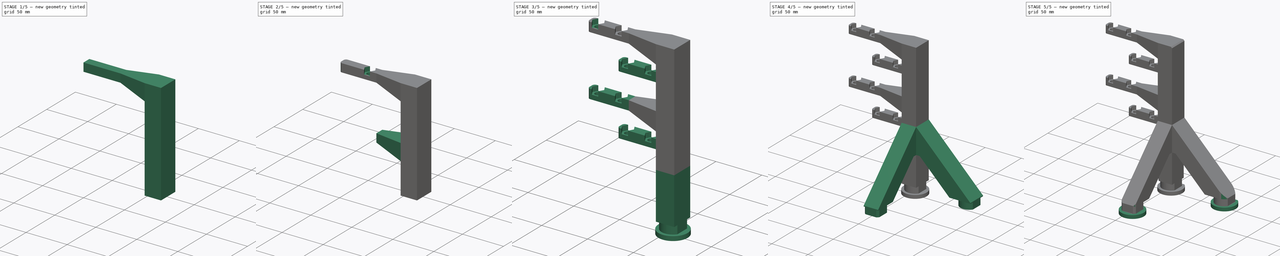
[diagram: build sequence overview — one tinted view per stage of 5, left to right]
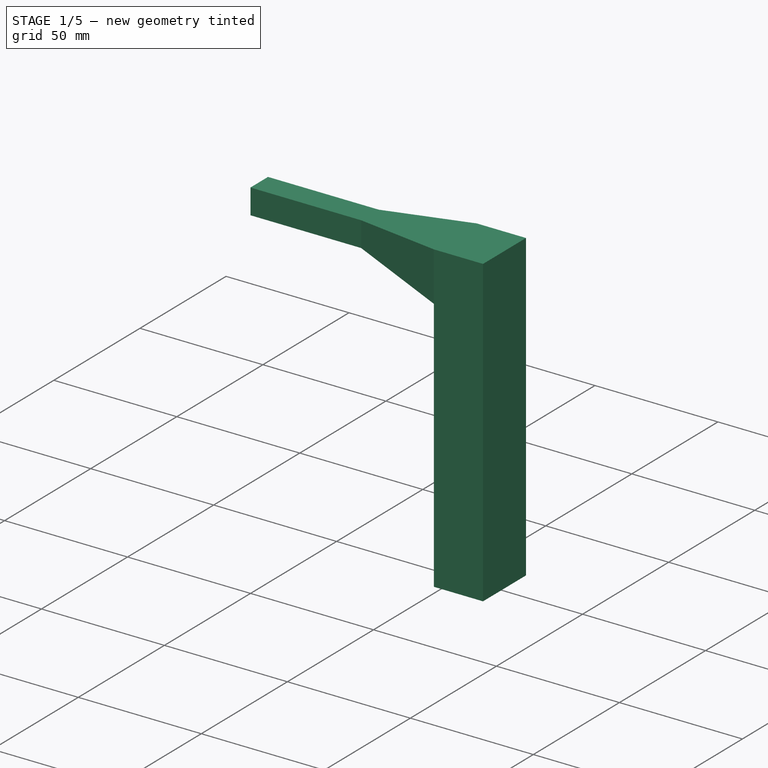
[diagram: stage 1 of 5 — iso view after this stage's code; geometry added in this stage tinted green]
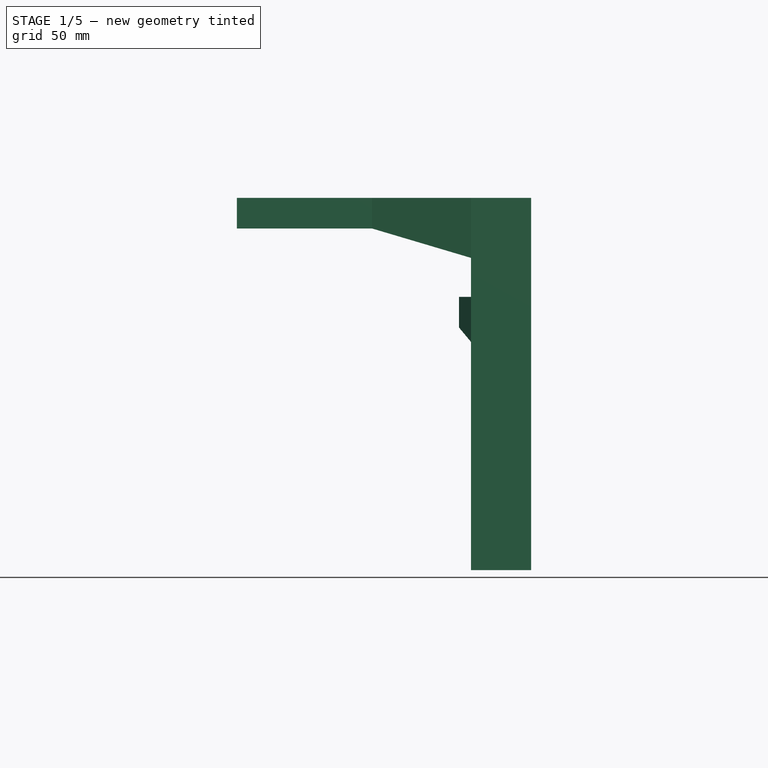
[diagram: stage 1 of 5 — front view after this stage's code; geometry added in this stage tinted green]
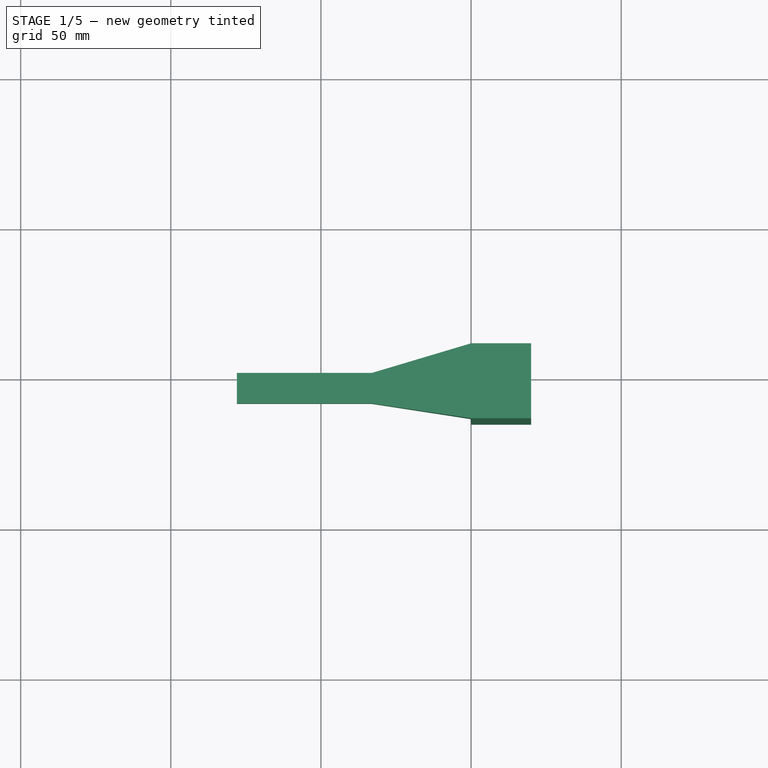
[diagram: stage 1 of 5 — top view after this stage's code; geometry added in this stage tinted green]
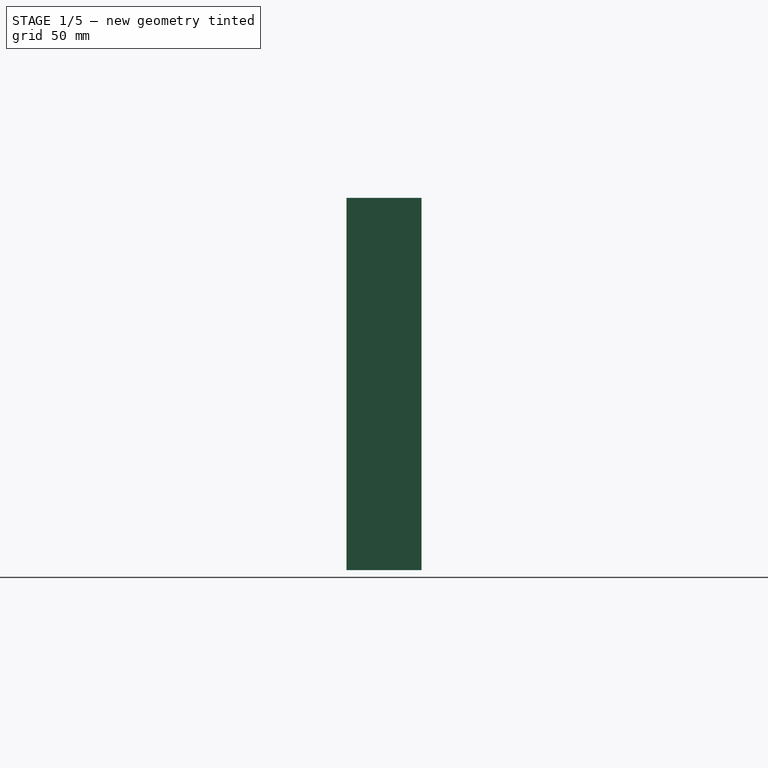
[diagram: stage 1 of 5 — right view after this stage's code; geometry added in this stage tinted green]
FCSTD DOCUMENT  (FreeCAD 0.19R)
Label: quad_clamp_right
License: All rights reserved
LicenseURL: http://en.wikipedia.org/wiki/All_rights_reserved
objects: Sketcher::SketchObject×16, PartDesign::Pad×8, PartDesign::LinearPattern×6, PartDesign::Pocket×5, PartDesign::Plane×2, PartDesign::AdditiveLoft×2, PartDesign::MultiTransform×2, PartDesign::Line×1, PartDesign::Hole×1, PartDesign::Fillet×1, PartDesign::Chamfer×1, PartDesign::Body×1
note: 64 computed .brp shape members not serialized (recipe doc carries the construction recipe); baked Part::Feature solids carry a one-line shape summary decoded from their .brp

FEATURE [Sketcher::SketchObject] Sketch001  label="rod_base_sk"
  FullyConstrained = true
  MapMode = 5
  Support = -> [XY_Plane]
  sketch-geometry (6):
    g0: LineSegment StartX=0 StartY=0 StartZ=0 EndX=-16.9706 EndY=-16.9706 EndZ=0
    g1: LineSegment StartX=-16.9706 StartY=-16.9706 StartZ=0 EndX=-28.9914 EndY=-4.94975 EndZ=0
    g2: LineSegment StartX=0 StartY=10 StartZ=0 EndX=20 EndY=10 EndZ=0
    g3: LineSegment StartX=20 StartY=10 StartZ=0 EndX=20 EndY=-14.9497 EndZ=0
    g4: LineSegment StartX=20 StartY=-14.9497 StartZ=0 EndX=0 EndY=-14.9497 EndZ=0
    g5: LineSegment StartX=0 StartY=-14.9497 StartZ=0 EndX=0 EndY=10 EndZ=0
  constraints (18):
    c: Coincident(g0,g-1)
    c: Coincident(g1,g0)
    c: Angle(g0,g-1) = 2.35619
    c: Perpendicular(g0,g1)
    c: Distance(g0) = 24
    c: Distance(g1) = 17
    c: Coincident(g2,g3)
    c: Coincident(g3,g4)
    c: Coincident(g4,g5)
    c: Coincident(g5,g2)
    c: Horizontal(g2)
    c: Horizontal(g4)
    c: Vertical(g3)
    c: Vertical(g5)
    c: PointOnObject(g2,g-2)
    c: DistanceY(g-1,g2) = 10
    c: DistanceY(g4,g1) = 10
    c: DistanceX(g2,g2) = 20
FEATURE [PartDesign::Pad] Pad  label="rod_base"
  Direction = (1,1,1)
  Length = 124
  Length2 = 100
  Profile = -> Sketch001
  Type = 0
FEATURE [Sketcher::SketchObject] Sketch  label="high_loft_bot_sk"
  ExternalGeometry = -> [Pad]
  FullyConstrained = true
  MapMode = 5
  Placement = pos=(0,0,0) rot=(0.57735,-0.57735,-0.57735;2.0944rad)
  Support = -> [Pad]
  sketch-geometry (4):
    g0: LineSegment StartX=14.9497 StartY=124 StartZ=0 EndX=-10 EndY=124 EndZ=0
    g1: LineSegment StartX=-10 StartY=124 StartZ=0 EndX=-10 EndY=104 EndZ=0
    g2: LineSegment StartX=-10 StartY=104 StartZ=0 EndX=14.9497 EndY=104 EndZ=0
    g3: LineSegment StartX=14.9497 StartY=104 StartZ=0 EndX=14.9497 EndY=124 EndZ=0
  constraints (11):
    c: Coincident(g0,g1)
    c: Coincident(g1,g2)
    c: Coincident(g2,g3)
    c: Coincident(g3,g0)
    c: Horizontal(g0)
    c: Horizontal(g2)
    c: Vertical(g1)
    c: Vertical(g3)
    c: Coincident(g0,g-3)
    c: PointOnObject(g1,g-4)
    c: DistanceY(g1,g1) = 20
FEATURE [PartDesign::Plane] DatumPlane  label="high_clamp_base_plane"
  AttachmentOffset = pos=(0,0,32.9914) rot=(0,0,1;0rad)
  Length = 151.06
  MapMode = 5
  Placement = pos=(-32.9914,0,0) rot=(0.57735,-0.57735,-0.57735;2.0944rad)
  ResizeMode = 0
  Support = -> [Pad]
  Width = 219.01
  expr: .AttachmentOffset.Base.z = (24 + 17) / sqrt(2) + 4
FEATURE [Sketcher::SketchObject] Sketch002  label="high_loft_top_sk"
  ExternalGeometry = -> [Pad]
  FullyConstrained = true
  MapMode = 5
  Placement = pos=(-32.9914,0,0) rot=(0.57735,-0.57735,-0.57735;2.0944rad)
  Support = -> [DatumPlane]
  sketch-geometry (4):
    g0: LineSegment StartX=-0.150253 StartY=124 StartZ=0 EndX=10.0497 EndY=124 EndZ=0
    g1: LineSegment StartX=10.0497 StartY=124 StartZ=0 EndX=10.0497 EndY=113.8 EndZ=0
    g2: LineSegment StartX=10.0497 StartY=113.8 StartZ=0 EndX=-0.150253 EndY=113.8 EndZ=0
    g3: LineSegment StartX=-0.150253 StartY=113.8 StartZ=0 EndX=-0.150253 EndY=124 EndZ=0
  constraints (12):
    c: Coincident(g0,g1)
    c: Coincident(g1,g2)
    c: Coincident(g2,g3)
    c: Coincident(g3,g0)
    c: Horizontal(g0)
    c: Horizontal(g2)
    c: Vertical(g1)
    c: Vertical(g3)
    c: PointOnObject(g0,g-3)
    c: DistanceX(g2,g2) = 10.2
    c: Equal(g2,g1)
    c: DistanceX(g0,g-3) = 4.9
FEATURE [Sketcher::SketchObject] Sketch003  label="low_loft_bot_sk"
  ExternalGeometry = -> [Pad]
  FullyConstrained = true
  MapMode = 5
  Placement = pos=(0,0,0) rot=(0.57735,-0.57735,-0.57735;2.0944rad)
  Support = -> [Pad]
  sketch-geometry (4):
    g0: LineSegment StartX=-10 StartY=91 StartZ=0 EndX=14.9497 EndY=91 EndZ=0
    g1: LineSegment StartX=14.9497 StartY=91 StartZ=0 EndX=14.9497 EndY=76 EndZ=0
    g2: LineSegment StartX=14.9497 StartY=76 StartZ=0 EndX=-10 EndY=76 EndZ=0
    g3: LineSegment StartX=-10 StartY=76 StartZ=0 EndX=-10 EndY=91 EndZ=0
  constraints (12):
    c: Coincident(g0,g1)
    c: Coincident(g1,g2)
    c: Coincident(g2,g3)
    c: Coincident(g3,g0)
    c: Horizontal(g0)
    c: Horizontal(g2)
    c: Vertical(g1)
    c: Vertical(g3)
    c: PointOnObject(g0,g-3)
    c: DistanceY(g0,g-3) = 33
    c: PointOnObject(g0,g-4)
    c: DistanceY(g3,g3) = 15
FEATURE [PartDesign::Plane] DatumPlane001  label="low_clamp_base_plane"
  AttachmentOffset = pos=(0,0,4) rot=(0,0,1;0rad)
  Length = 151.06
  MapMode = 5
  Placement = pos=(-4,0,0) rot=(0.57735,-0.57735,-0.57735;2.0944rad)
  ResizeMode = 0
  Support = -> [Pad]
  Width = 219.01
FEATURE [Sketcher::SketchObject] Sketch004  label="low_loft_top_sk"
  ExternalGeometry = -> [Pad]
  FullyConstrained = true
  MapMode = 5
  Placement = pos=(-4,0,0) rot=(0.57735,-0.57735,-0.57735;2.0944rad)
  Support = -> [DatumPlane001]
  sketch-geometry (4):
    g0: LineSegment StartX=-5.1 StartY=91 StartZ=0 EndX=5.1 EndY=91 EndZ=0
    g1: LineSegment StartX=5.1 StartY=91 StartZ=0 EndX=5.1 EndY=80.8 EndZ=0
    g2: LineSegment StartX=5.1 StartY=80.8 StartZ=0 EndX=-5.1 EndY=80.8 EndZ=0
    g3: LineSegment StartX=-5.1 StartY=80.8 StartZ=0 EndX=-5.1 EndY=91 EndZ=0
  constraints (12):
    c: Coincident(g0,g1)
    c: Coincident(g1,g2)
    c: Coincident(g2,g3)
    c: Coincident(g3,g0)
    c: Horizontal(g0)
    c: Horizontal(g2)
    c: Vertical(g1)
    c: Vertical(g3)
    c: DistanceY(g0,g-3) = 33
    c: DistanceX(g-3,g0) = 4.9
    c: DistanceX(g2,g2) = 10.2
    c: Equal(g3,g2)
FEATURE [PartDesign::AdditiveLoft] AdditiveLoft  label="high_loft"
  BaseFeature = -> Pad
  Closed = false
  Profile = -> Sketch
  Ruled = false
  Sections = -> [Sketch002]
FEATURE [PartDesign::AdditiveLoft] AdditiveLoft001  label="low_loft"
  BaseFeature = -> AdditiveLoft
  Closed = false
  Profile = -> Sketch003
  Ruled = false
  Sections = -> [Sketch004]
FEATURE [PartDesign::Line] DatumLine  label="clamp_vector"
  AttacherType = Attacher::AttachEngineLine
  Length = 20
  MapMode = 29
  Placement = pos=(41.9014,12.9368,38.7519) rot=(0.619156,0.733824,0.27955;2.67833rad)
  ResizeMode = 0
  Support = -> [AdditiveLoft001]
FEATURE [PartDesign::Pad] Pad001  label="clamp_base"
  BaseFeature = -> AdditiveLoft001
  Direction = (1,1,1)
  Length = 45
  Length2 = 100
  Profile = -> AdditiveLoft001 [Face14]
  Type = 0
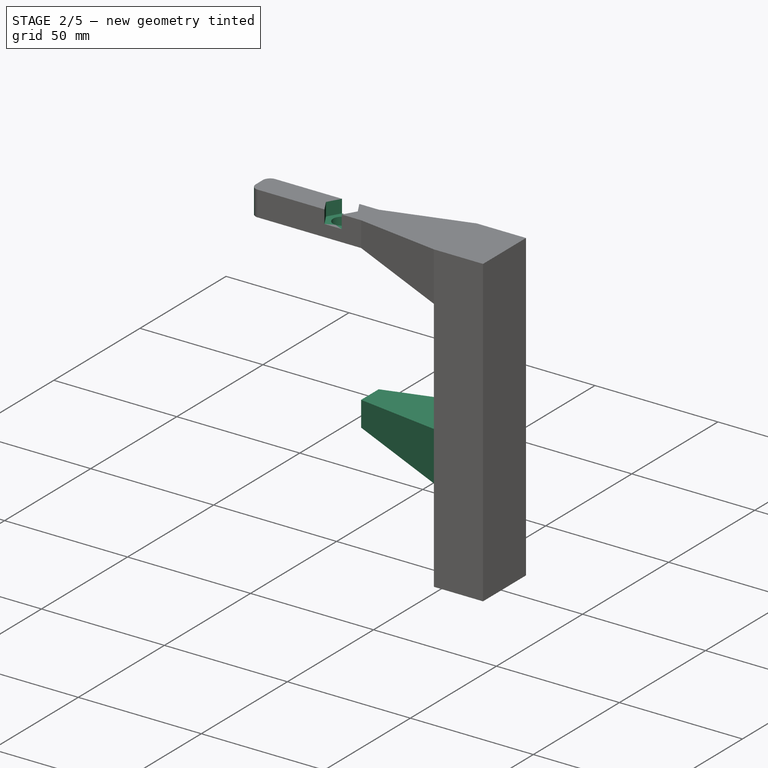
[diagram: stage 2 of 5 — iso view after this stage's code; geometry added in this stage tinted green]
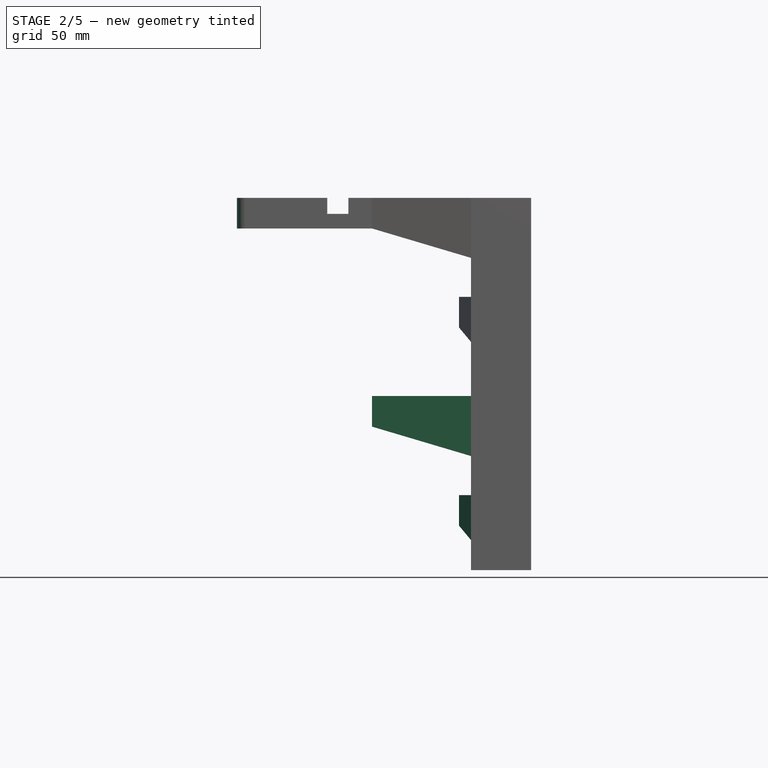
[diagram: stage 2 of 5 — front view after this stage's code; geometry added in this stage tinted green]
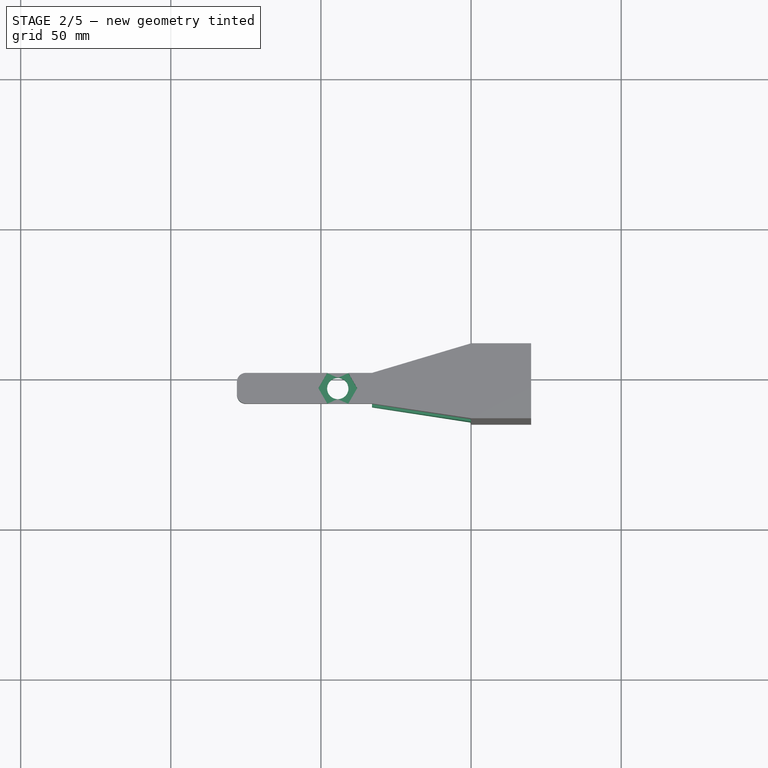
[diagram: stage 2 of 5 — top view after this stage's code; geometry added in this stage tinted green]
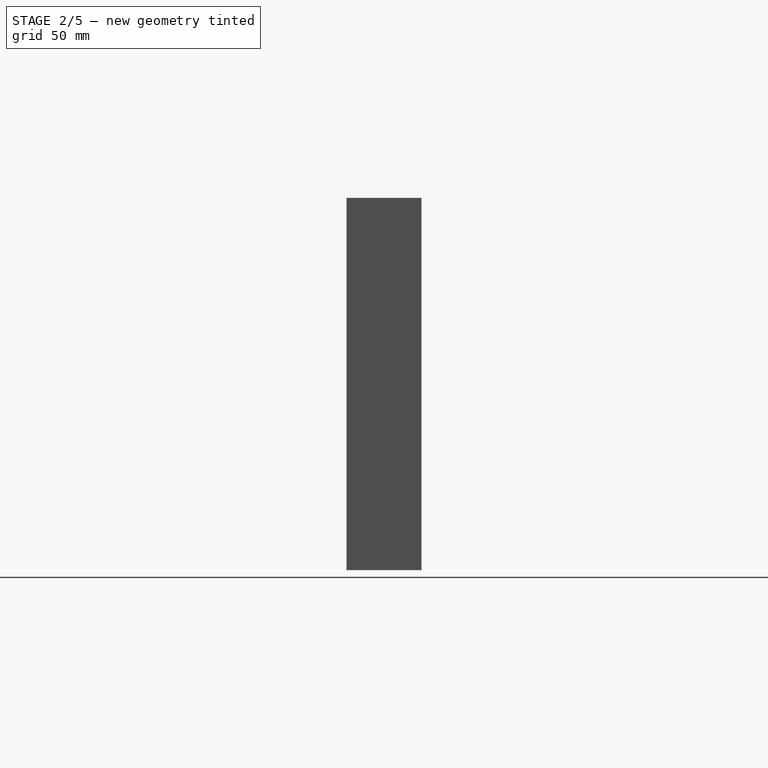
[diagram: stage 2 of 5 — right view after this stage's code; geometry added in this stage tinted green]
FEATURE [Sketcher::SketchObject] Sketch005  label="1on4_hole_sk"
  ExternalGeometry = -> [Pad001]
  FullyConstrained = true
  MapMode = 5
  Placement = pos=(0,0,124) rot=(0,0,1;0rad)
  Support = -> [Pad001]
  sketch-geometry (2):
    g0: Circle CenterX=-44.3914 CenterY=-4.94975 CenterZ=0 NormalX=0 NormalY=0 NormalZ=1 AngleXU=0 Radius=3.35
    g1: GeomPoint X=-32.9914 Y=-4.94975 Z=0
  constraints (4):
    c: Symmetric(g-3,g-3,g1)
    c: Horizontal(g0,g1)
    c: DistanceX(g0,g1) = 11.4
    c: Diameter(g0) = 6.7
FEATURE [PartDesign::Hole] Hole  label="1on4_hole"
  BaseFeature = -> Pad001
  Depth = 15
  DepthType = 0
  Diameter = 7.1
  DrillForDepth = false
  DrillPoint = 1
  DrillPointAngle = 118
  HoleCutCountersinkAngle = 90
  HoleCutCustomValues = false
  HoleCutDepth = 0
  HoleCutDiameter = 6.1
  HoleCutType = 0
  ModelActualThread = false
  Profile = -> Sketch005
  Tapered = false
  TaperedAngle = 90
  ThreadAngle = 0
  ThreadClass = 0
  ThreadCutOffInner = 0
  ThreadCutOffOuter = 0
  ThreadDirection = 0
  ThreadFit = 0
  ThreadPitch = 0
  ThreadSize = 9
  ThreadType = 3
  Threaded = false
FEATURE [Sketcher::SketchObject] Sketch006  label="1on4_hex_sk"
  ExternalGeometry = -> [Hole]
  FullyConstrained = true
  MapMode = 5
  Placement = pos=(0,0,124) rot=(0,0,1;0rad)
  Support = -> [Hole]
  sketch-geometry (7):
    g0: LineSegment StartX=-50.8577 StartY=-4.94975 StartZ=0 EndX=-47.6245 EndY=-10.5497 EndZ=0
    g1: LineSegment StartX=-47.6245 StartY=-10.5497 StartZ=0 EndX=-41.1582 EndY=-10.5497 EndZ=0
    g2: LineSegment StartX=-41.1582 StartY=-10.5497 StartZ=0 EndX=-37.9251 EndY=-4.94975 EndZ=0
    g3: LineSegment StartX=-37.9251 StartY=-4.94975 StartZ=0 EndX=-41.1582 EndY=0.650253 EndZ=0
    g4: LineSegment StartX=-41.1582 StartY=0.650253 StartZ=0 EndX=-47.6245 EndY=0.650253 EndZ=0
    g5: LineSegment StartX=-47.6245 StartY=0.650253 StartZ=0 EndX=-50.8577 EndY=-4.94975 EndZ=0
    g6: Circle CenterX=-44.3914 CenterY=-4.94975 CenterZ=0 NormalX=0 NormalY=0 NormalZ=1 AngleXU=0 Radius=6.46632
  constraints (16):
    c: Coincident(g0,g1)
    c: Coincident(g1,g2)
    c: Coincident(g2,g3)
    c: Coincident(g3,g4)
    c: Coincident(g4,g5)
    c: Coincident(g5,g0)
    c: Equal(g0, g1-g5) x5
    c: PointOnObject(g0,g6)
    c: PointOnObject(g1,g6)
    c: PointOnObject(g2,g6)
    c: PointOnObject(g3,g6)
    c: PointOnObject(g4,g6)
    c: PointOnObject(g5,g6)
    c: Coincident(g6,g-3)
    c: Horizontal(g0,g6)
    c: DistanceY(g0,g4) = 11.2
FEATURE [PartDesign::Pocket] Pocket  label="1on4_hex"
  BaseFeature = -> Hole
  Length = 5.35
  Length2 = 100
  Profile = -> Sketch006
  Type = 0
FEATURE [PartDesign::Fillet] Fillet  label="clamp_tip_fillet"
  Base = -> Pocket [Edge40,Edge63]
  BaseFeature = -> Pocket
  Radius = 3
  SupportTransform = false
FEATURE [PartDesign::LinearPattern] LinearPattern  label="quad_loft"
  BaseFeature = -> Fillet
  Direction = -> Z_Axis
  Length = 66
  Occurrences = 2
  Originals = -> [AdditiveLoft,AdditiveLoft001]
  Reversed = true
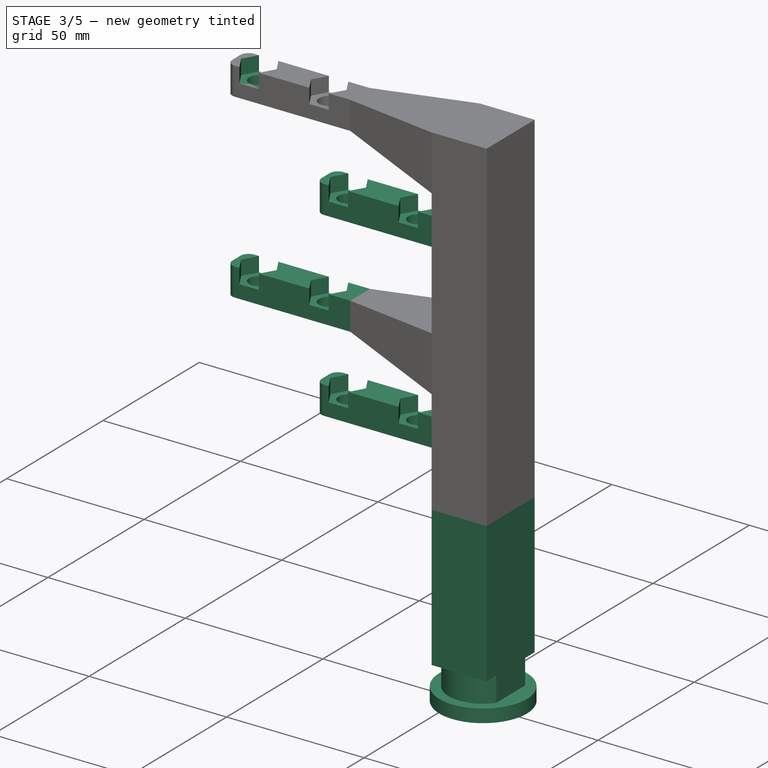
[diagram: stage 3 of 5 — iso view after this stage's code; geometry added in this stage tinted green]
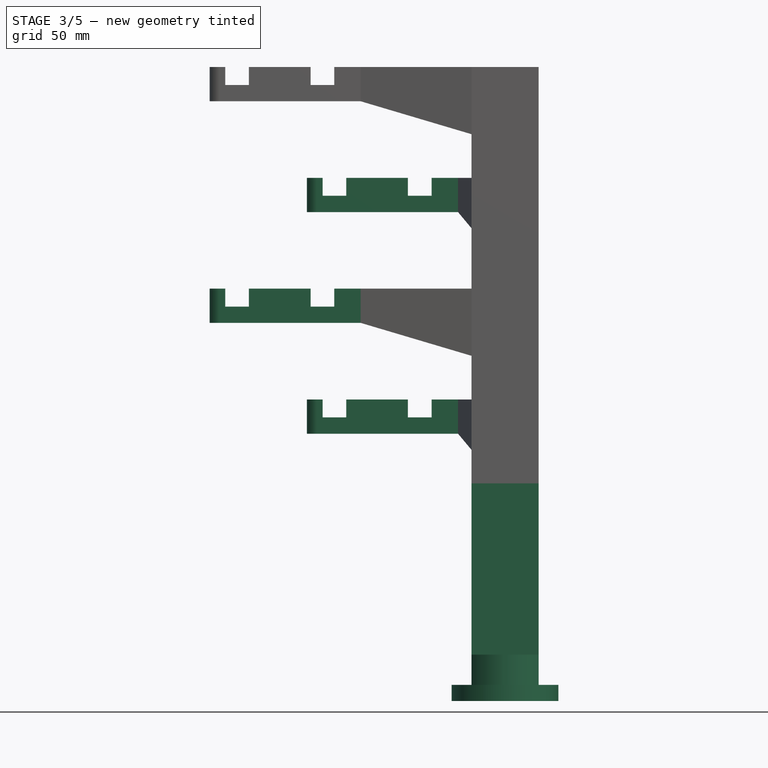
[diagram: stage 3 of 5 — front view after this stage's code; geometry added in this stage tinted green]
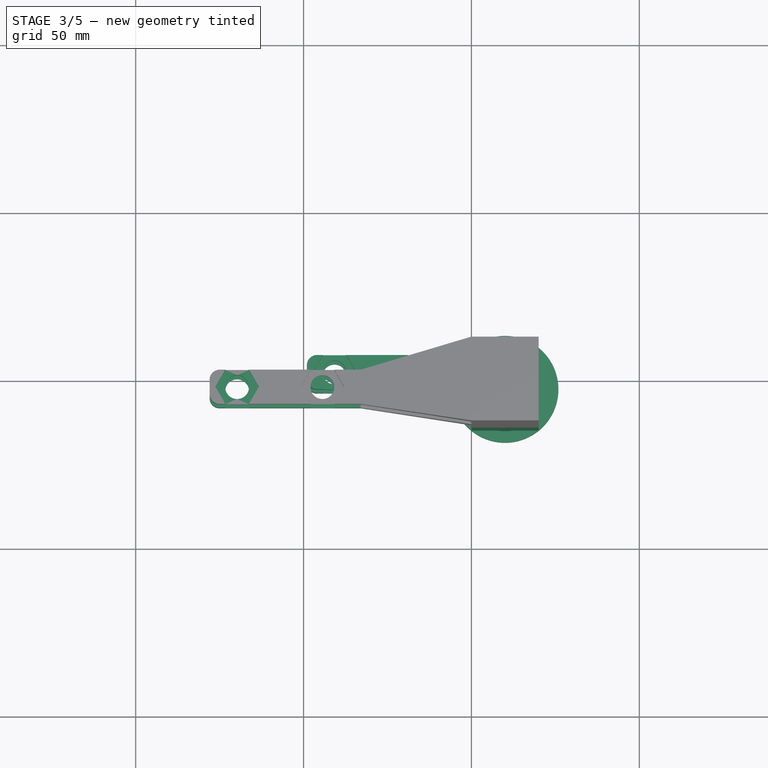
[diagram: stage 3 of 5 — top view after this stage's code; geometry added in this stage tinted green]
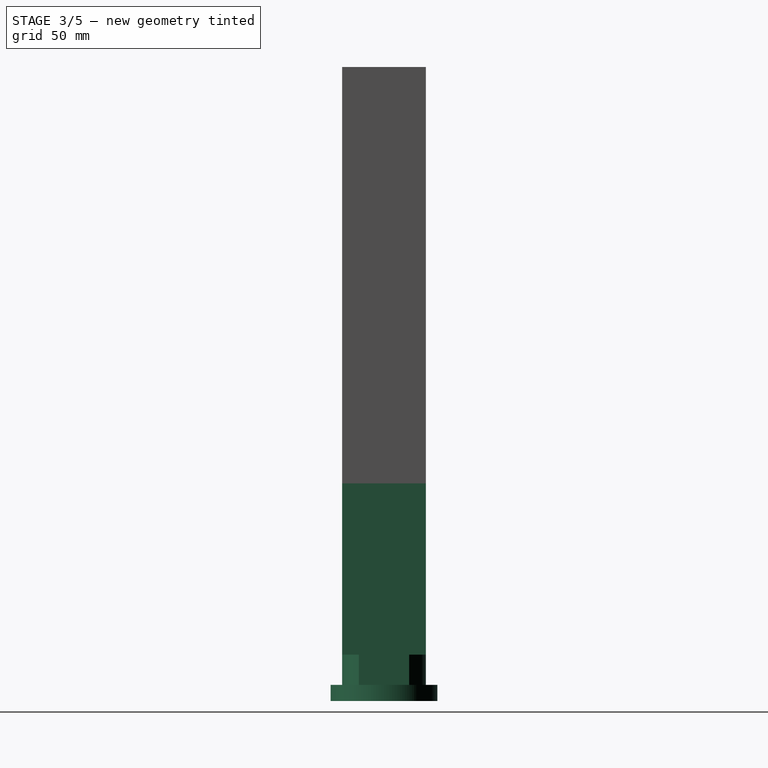
[diagram: stage 3 of 5 — right view after this stage's code; geometry added in this stage tinted green]
FEATURE [PartDesign::LinearPattern] LinearPattern001
  Direction = -> Z_Axis
  Length = 66
  Occurrences = 2
  Reversed = true
FEATURE [PartDesign::LinearPattern] LinearPattern002
  Direction = -> DatumLine
  Length = 44.2041
  Occurrences = 2
  expr: Length = sqrt(17 ^ 2 + 24 ^ 2 + 33 ^ 2)
FEATURE [PartDesign::MultiTransform] MultiTransform  label="quad_clamp_base"
  BaseFeature = -> LinearPattern
  Originals = -> [Pad001,Fillet]
  Transformations = -> [LinearPattern001,LinearPattern002]
FEATURE [PartDesign::LinearPattern] LinearPattern003
  Direction = -> X_Axis
  Length = 25.4
  Occurrences = 2
  Reversed = true
FEATURE [PartDesign::LinearPattern] LinearPattern004
  Direction = -> Z_Axis
  Length = 66
  Occurrences = 2
  Reversed = true
FEATURE [PartDesign::LinearPattern] LinearPattern005
  Direction = -> DatumLine
  Length = 44.2041
  Occurrences = 2
  expr: Length = sqrt(17 ^ 2 + 24 ^ 2 + 33 ^ 2)
FEATURE [PartDesign::MultiTransform] MultiTransform001  label="quad_dual_1on4_sys"
  BaseFeature = -> MultiTransform
  Originals = -> [Hole,Pocket]
  Transformations = -> [LinearPattern003,LinearPattern004,LinearPattern005]
FEATURE [PartDesign::Pad] Pad002  label="extender"
  BaseFeature = -> MultiTransform001
  Direction = (1,1,1)
  Length = 60
  Length2 = 100
  Profile = -> MultiTransform001 [Face35]
  Type = 0
FEATURE [Sketcher::SketchObject] Sketch007  label="clamp_clearance_sk"
  ExternalGeometry = -> [Pad002]
  FullyConstrained = true
  MapMode = 5
  Placement = pos=(0,0,-60) rot=(1,0,0;3.14159rad)
  Support = -> [Pad002]
  sketch-geometry (2):
    g0: Circle CenterX=10 CenterY=2.47487 CenterZ=0 NormalX=0 NormalY=0 NormalZ=1 AngleXU=0 Radius=20
    g1: Circle CenterX=10 CenterY=2.47487 CenterZ=0 NormalX=0 NormalY=0 NormalZ=1 AngleXU=0 Radius=12.5
  constraints (4):
    c: Symmetric(g-4,g-3,g0)
    c: Diameter(g0) = 40
    c: Coincident(g1,g0)
    c: Diameter(g1) = 25
FEATURE [PartDesign::Pocket] Pocket001  label="clamp_clearance"
  BaseFeature = -> Pad002
  Length = 9
  Length2 = 100
  Profile = -> Sketch007
  Type = 0
FEATURE [Sketcher::SketchObject] Sketch008  label="clamp_disk_sk"
  ExternalGeometry = -> [Pocket001]
  FullyConstrained = true
  MapMode = 5
  Placement = pos=(0,0,-60) rot=(1,0,0;3.14159rad)
  Support = -> [Pocket001]
  sketch-geometry (1):
    g0: Circle CenterX=10 CenterY=2.47487 CenterZ=0 NormalX=0 NormalY=0 NormalZ=1 AngleXU=0 Radius=15.9
  constraints (2):
    c: Coincident(g0,g-3)
    c: Diameter(g0) = 31.8
FEATURE [PartDesign::Pad] Pad003  label="clamp_disk"
  BaseFeature = -> Pocket001
  Direction = (1,1,1)
  Length = 4.8
  Length2 = 100
  Profile = -> Sketch008
  Type = 0
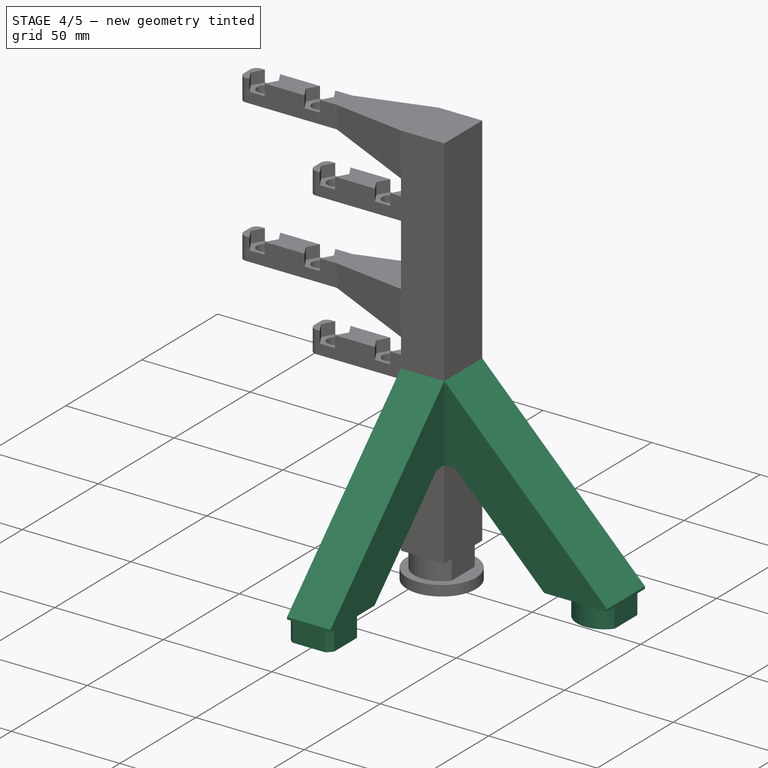
[diagram: stage 4 of 5 — iso view after this stage's code; geometry added in this stage tinted green]
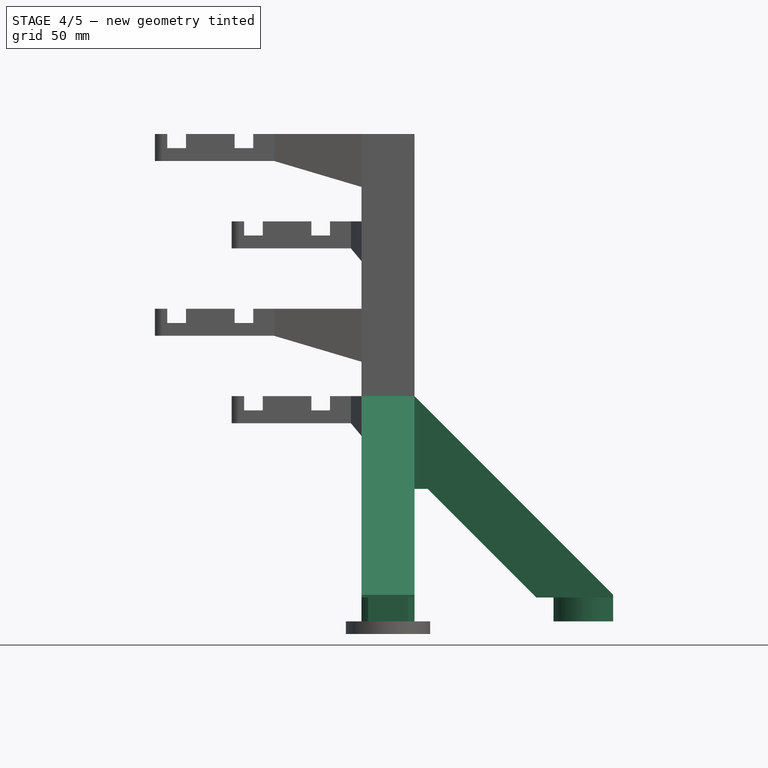
[diagram: stage 4 of 5 — front view after this stage's code; geometry added in this stage tinted green]
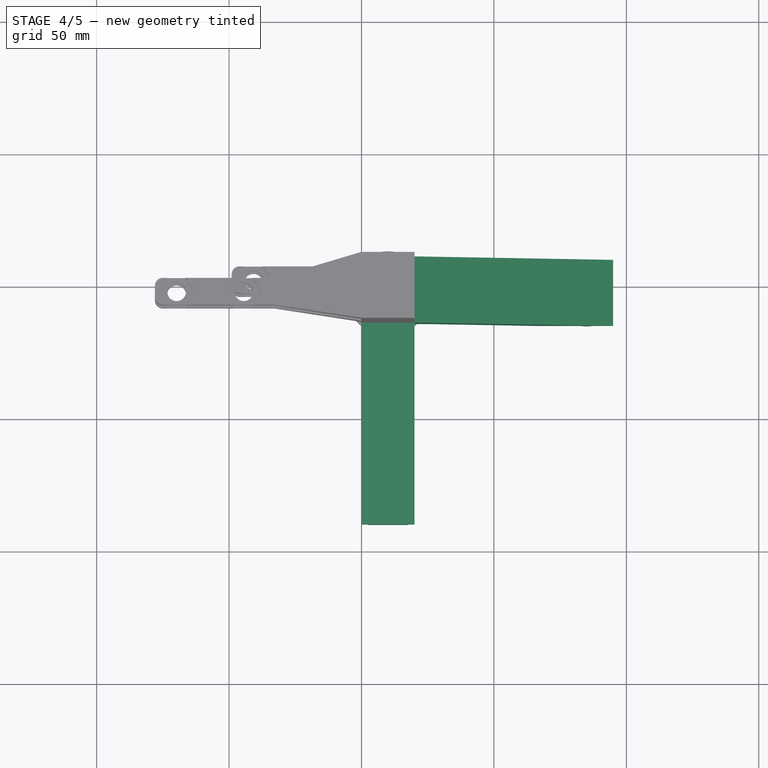
[diagram: stage 4 of 5 — top view after this stage's code; geometry added in this stage tinted green]
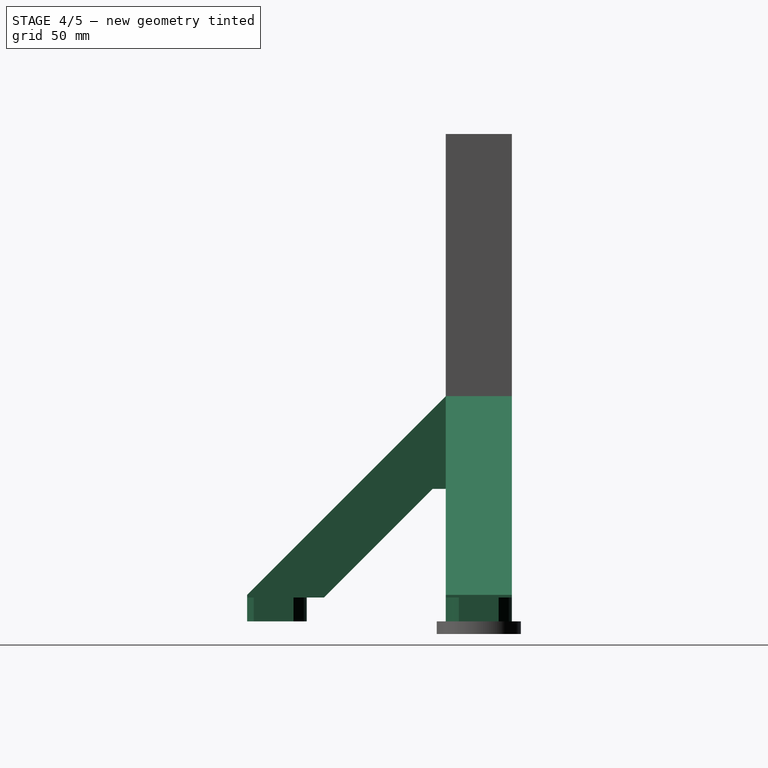
[diagram: stage 4 of 5 — right view after this stage's code; geometry added in this stage tinted green]
FEATURE [Sketcher::SketchObject] Sketch009  label="side_stiffener_1_sk"
  ExternalGeometry = -> [Pad003]
  FullyConstrained = true
  MapMode = 5
  Placement = pos=(0,-14.9497,0) rot=(1,0,0;1.5708rad)
  Support = -> [Pad003]
  sketch-geometry (6):
    g0: LineSegment StartX=20 StartY=25 StartZ=0 EndX=95 EndY=-50 EndZ=0
    g1: LineSegment StartX=95 StartY=-50 StartZ=0 EndX=95 EndY=-60 EndZ=0
    g2: LineSegment StartX=95 StartY=-60 StartZ=0 EndX=75 EndY=-60 EndZ=0
    g3: LineSegment StartX=75 StartY=-60 StartZ=0 EndX=25 EndY=-10 EndZ=0
    g4: LineSegment StartX=25 StartY=-10 StartZ=0 EndX=20 EndY=-10 EndZ=0
    g5: LineSegment StartX=20 StartY=-10 StartZ=0 EndX=20 EndY=25 EndZ=0
  constraints (18):
    c: PointOnObject(g0,g-3)
    c: Coincident(g0,g1)
    c: Vertical(g1)
    c: Coincident(g1,g2)
    c: Horizontal(g2)
    c: Coincident(g2,g3)
    c: Coincident(g3,g4)
    c: PointOnObject(g4,g-3)
    c: Horizontal(g4)
    c: Coincident(g4,g5)
    c: Coincident(g5,g0)
    c: Horizontal(g-4,g2)
    c: DistanceY(g-4,g3) = 50
    c: Angle(g2,g3) = 2.35619
    c: Parallel(g0,g3)
    c: DistanceX(g2,g2) = 20
    c: DistanceY(g1,g1) = 10
    c: DistanceX(g4,g4) = 5
FEATURE [PartDesign::Pad] Pad004  label="side_stiffener_1"
  BaseFeature = -> Pad003
  Direction = (1,1,1)
  Length = 5
  Length2 = 100
  Profile = -> Sketch009
  Reversed = true
  Type = 3
  UpToFace = -> Pad003 [Face4]
FEATURE [Sketcher::SketchObject] Sketch010  label="side_stiffener_2_sk"
  ExternalGeometry = -> [Pad003]
  FullyConstrained = true
  MapMode = 5
  Placement = pos=(20,0,0) rot=(0.57735,0.57735,0.57735;2.0944rad)
  Support = -> [Pad003]
  sketch-geometry (6):
    g0: LineSegment StartX=-14.9497 StartY=25 StartZ=0 EndX=-89.9497 EndY=-50 EndZ=0
    g1: LineSegment StartX=-89.9497 StartY=-50 StartZ=0 EndX=-89.9497 EndY=-60 EndZ=0
    g2: LineSegment StartX=-89.9497 StartY=-60 StartZ=0 EndX=-69.9497 EndY=-60 EndZ=0
    g3: LineSegment StartX=-69.9497 StartY=-60 StartZ=0 EndX=-19.9497 EndY=-10 EndZ=0
    g4: LineSegment StartX=-19.9497 StartY=-10 StartZ=0 EndX=-14.9497 EndY=-10 EndZ=0
    g5: LineSegment StartX=-14.9497 StartY=-10 StartZ=0 EndX=-14.9497 EndY=25 EndZ=0
  constraints (18):
    c: PointOnObject(g0,g-3)
    c: Coincident(g0,g1)
    c: Vertical(g1)
    c: Coincident(g1,g2)
    c: Horizontal(g2)
    c: Coincident(g2,g3)
    c: Coincident(g3,g4)
    c: Horizontal(g4)
    c: Coincident(g4,g5)
    c: Coincident(g5,g0)
    c: PointOnObject(g4,g-3)
    c: DistanceX(g4,g4) = 5
    c: DistanceY(g-4,g4) = 50
    c: Angle(g3,g2) = 2.35619
    c: Parallel(g0,g3)
    c: DistanceY(g1,g1) = 10
    c: DistanceX(g2,g2) = 20
    c: Horizontal(g2,g-4)
FEATURE [PartDesign::Pad] Pad005  label="side_stiffener_2"
  BaseFeature = -> Pad004
  Direction = (1,1,1)
  Length = 10
  Length2 = 100
  Profile = -> Sketch010
  Reversed = true
  Type = 3
  UpToFace = -> Pad004 [Face10]
FEATURE [Sketcher::SketchObject] Sketch011  label="foot_clamp_clearance"
  ExternalGeometry = -> [Pad005]
  FullyConstrained = true
  MapMode = 5
  Placement = pos=(0,-1.33e-14,-60) rot=(1,0,0;3.14159rad)
  Support = -> [Pad005]
  sketch-geometry (4):
    g0: Circle CenterX=85 CenterY=2.47487 CenterZ=0 NormalX=0 NormalY=0 NormalZ=1 AngleXU=0 Radius=25
    g1: Circle CenterX=10 CenterY=79.9497 CenterZ=0 NormalX=0 NormalY=0 NormalZ=1 AngleXU=0 Radius=25
    g2: Circle CenterX=10 CenterY=79.9497 CenterZ=0 NormalX=0 NormalY=0 NormalZ=1 AngleXU=0 Radius=12.5
    g3: Circle CenterX=85 CenterY=2.47487 CenterZ=0 NormalX=0 NormalY=0 NormalZ=1 AngleXU=0 Radius=12.5
  constraints (8):
    c: Symmetric(g-3,g-4,g1)
    c: Symmetric(g-6,g-5,g0)
    c: Diameter(g1) = 50
    c: Equal(g1,g0)
    c: Coincident(g2,g1)
    c: Diameter(g2) = 25
    c: Coincident(g3,g0)
    c: Equal(g3,g2)
FEATURE [PartDesign::Pocket] Pocket002  label="foot_clamp_clearance001"
  BaseFeature = -> Pad005
  Length = 0
  Length2 = 100
  Profile = -> Sketch011
  Type = 3
  UpToFace = -> Pad005 [Face17]
FEATURE [Sketcher::SketchObject] Sketch012  label="foot_filling_sk"
  ExternalGeometry = -> [Pocket002]
  FullyConstrained = true
  MapMode = 5
  Placement = pos=(0,0,-60) rot=(1,0,0;3.14159rad)
  Support = -> [Pocket002]
  sketch-geometry (4):
    g0: LineSegment StartX=2.5 StartY=69.9497 StartZ=0 EndX=17.5 EndY=69.9497 EndZ=0
    g1: LineSegment StartX=75 StartY=-5.02513 StartZ=0 EndX=75 EndY=9.97487 EndZ=0
    g2: ArcOfCircle CenterX=10 CenterY=79.9497 CenterZ=0 NormalX=0 NormalY=0 NormalZ=1 AngleXU=0 Radius=12.5 StartAngle=4.06889 EndAngle=5.35589
    g3: ArcOfCircle CenterX=85 CenterY=2.47487 CenterZ=0 NormalX=0 NormalY=0 NormalZ=1 AngleXU=0 Radius=12.5 StartAngle=2.49809 EndAngle=3.78509
  constraints (10):
    c: Coincident(g0,g-3)
    c: Coincident(g0,g-3)
    c: Coincident(g1,g-4)
    c: Coincident(g1,g-4)
    c: Coincident(g2,g-6)
    c: Coincident(g2,g0)
    c: Coincident(g2,g0)
    c: Coincident(g3,g-5)
    c: Coincident(g3,g1)
    c: Coincident(g3,g1)
FEATURE [PartDesign::Pad] Pad006  label="foot_filling"
  BaseFeature = -> Pocket002
  Direction = (1,1,1)
  Length = 10
  Length2 = 100
  Profile = -> Sketch012
  Reversed = true
  Type = 3
  UpToFace = -> Pocket002 [Face35]
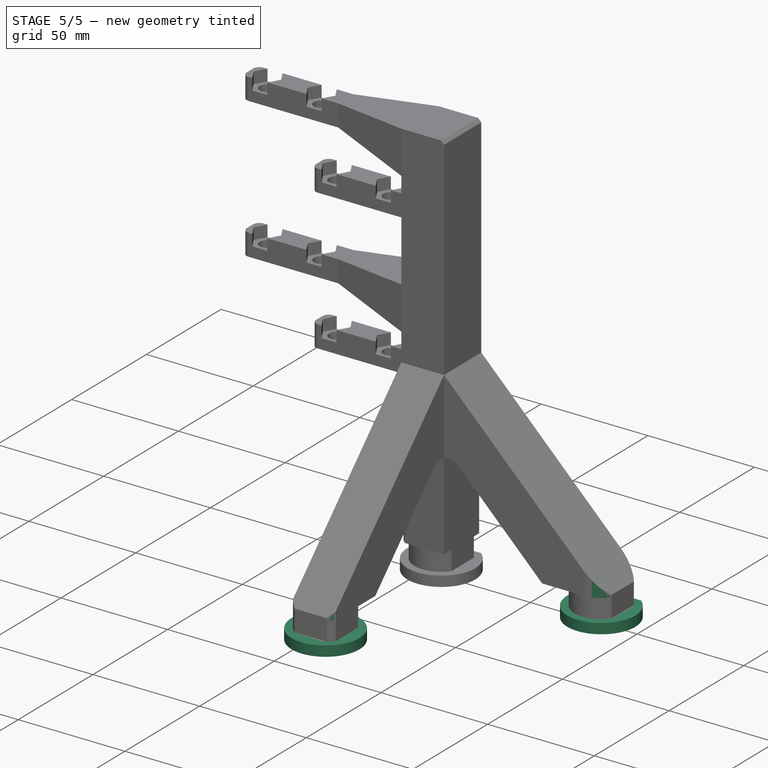
[diagram: stage 5 of 5 — iso view after this stage's code; geometry added in this stage tinted green]
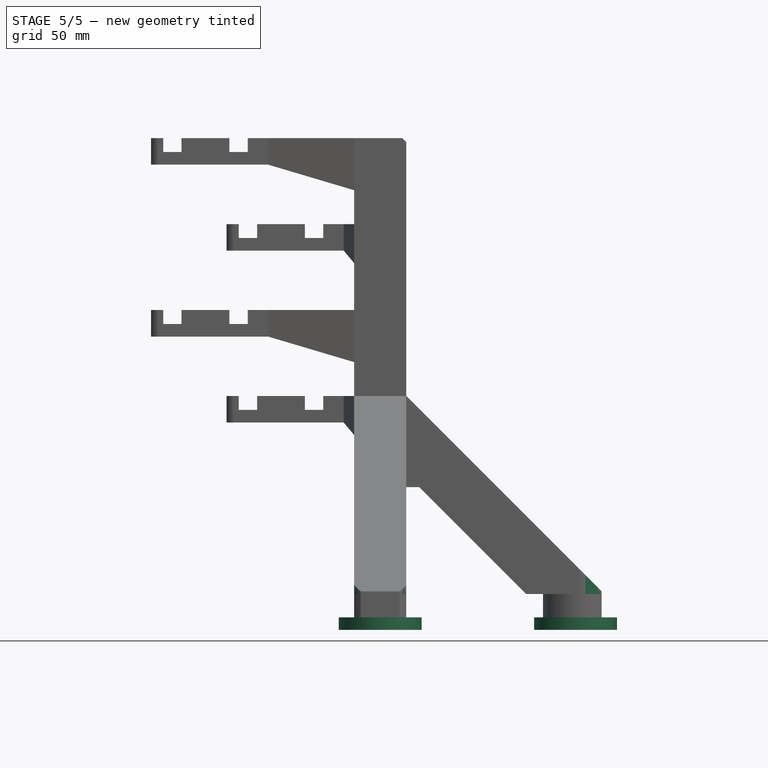
[diagram: stage 5 of 5 — front view after this stage's code; geometry added in this stage tinted green]
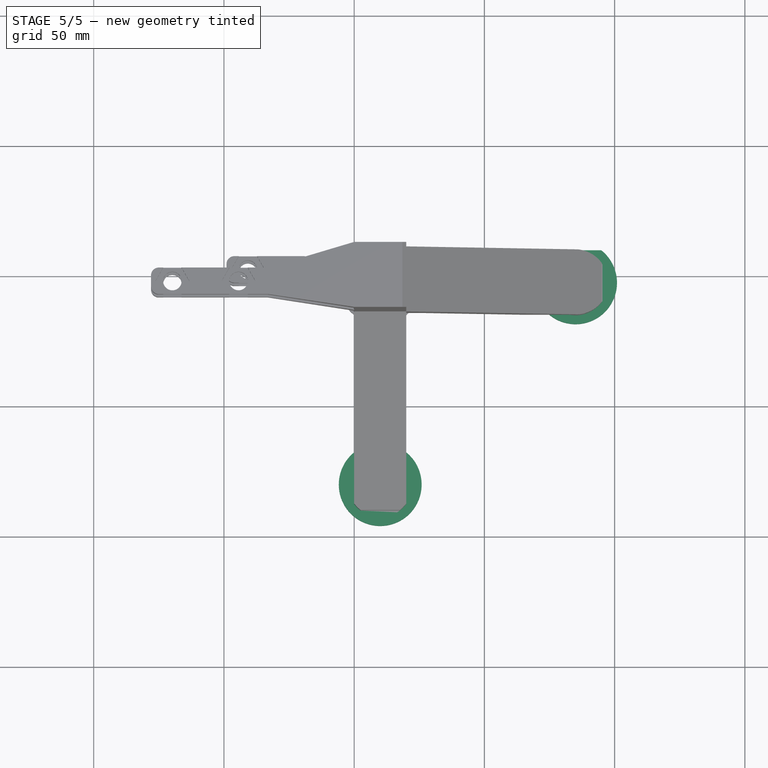
[diagram: stage 5 of 5 — top view after this stage's code; geometry added in this stage tinted green]
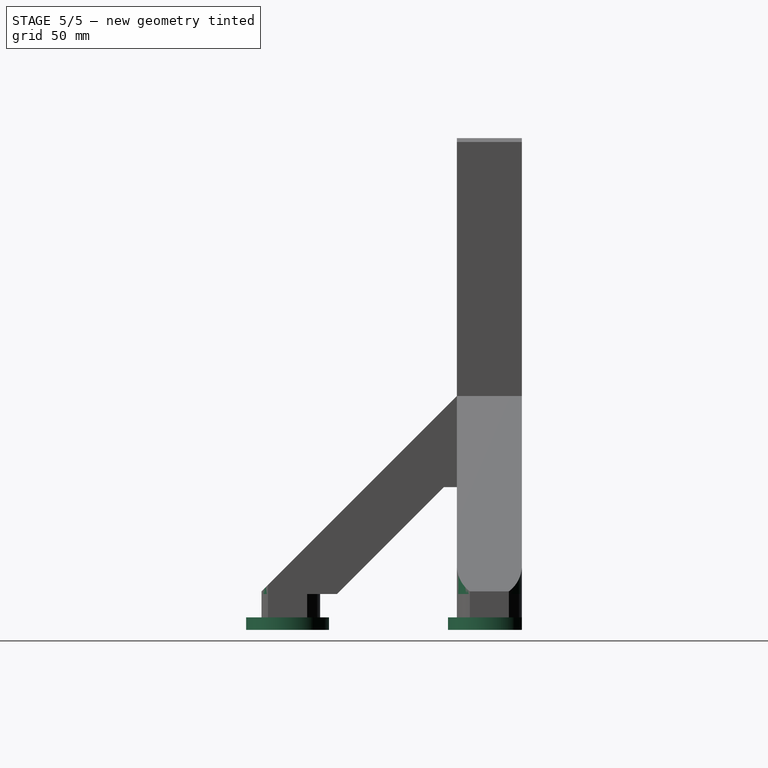
[diagram: stage 5 of 5 — right view after this stage's code; geometry added in this stage tinted green]
FEATURE [Sketcher::SketchObject] Sketch013  label="foot_disk_sk"
  ExternalGeometry = -> [Pad006]
  FullyConstrained = true
  MapMode = 5
  Placement = pos=(0,0,-60) rot=(1,0,0;3.14159rad)
  Support = -> [Pad006]
  sketch-geometry (2):
    g0: Circle CenterX=10 CenterY=79.9497 CenterZ=0 NormalX=0 NormalY=0 NormalZ=1 AngleXU=0 Radius=15.9
    g1: Circle CenterX=85 CenterY=2.47487 CenterZ=0 NormalX=0 NormalY=0 NormalZ=1 AngleXU=0 Radius=15.9
  constraints (4):
    c: Coincident(g0,g-3)
    c: Coincident(g1,g-4)
    c: Diameter(g0) = 31.8
    c: Equal(g1,g0)
FEATURE [PartDesign::Pad] Pad007  label="foot_disk"
  BaseFeature = -> Pad006
  Direction = (1,1,1)
  Length = 10
  Length2 = 100
  Profile = -> Sketch013
  Type = 3
  UpToFace = -> Pad006 [Face3]
FEATURE [Sketcher::SketchObject] Sketch014  label="print_trimmer_sk"
  ExternalGeometry = -> [Pad007]
  FullyConstrained = true
  MapMode = 5
  Placement = pos=(0,0,-60) rot=(0,0,1;0rad)
  Support = -> [Pad007]
  sketch-geometry (4):
    g0: LineSegment StartX=-15 StartY=10 StartZ=0 EndX=110 EndY=10 EndZ=0
    g1: LineSegment StartX=110 StartY=10 StartZ=0 EndX=110 EndY=20 EndZ=0
    g2: LineSegment StartX=110 StartY=20 StartZ=0 EndX=-15 EndY=20 EndZ=0
    g3: LineSegment StartX=-15 StartY=20 StartZ=0 EndX=-15 EndY=10 EndZ=0
  constraints (12):
    c: Coincident(g0,g1)
    c: Coincident(g1,g2)
    c: Coincident(g2,g3)
    c: Coincident(g3,g0)
    c: Horizontal(g0)
    c: Horizontal(g2)
    c: Vertical(g1)
    c: Vertical(g3)
    c: PointOnObject(g0,g-3)
    c: DistanceY(g3,g3) = 10
    c: DistanceX(g2) = -15
    c: DistanceX(g1) = 110
FEATURE [PartDesign::Pocket] Pocket003  label="print_trimmer"
  BaseFeature = -> Pad007
  Length = 5
  Length2 = 100
  Profile = -> Sketch014
  Type = 1
FEATURE [Sketcher::SketchObject] Sketch015  label="foot_trimmer_sk"
  ExternalGeometry = -> [Pocket003]
  FullyConstrained = true
  MapMode = 5
  Placement = pos=(0,0,-60) rot=(0,0,1;0rad)
  Support = -> [Pocket003]
  sketch-geometry (8):
    g0: ArcOfCircle CenterX=85 CenterY=-2.47487 CenterZ=0 NormalX=0 NormalY=0 NormalZ=1 AngleXU=0 Radius=12.5 StartAngle=4.7758 EndAngle=7.79057
    g1: ArcOfCircle CenterX=10 CenterY=-79.9497 CenterZ=0 NormalX=0 NormalY=0 NormalZ=1 AngleXU=0 Radius=12.5 StartAngle=3.78509 EndAngle=5.63968
    g2: ArcOfCircle CenterX=85 CenterY=-2.47487 CenterZ=0 NormalX=0 NormalY=0 NormalZ=1 AngleXU=0 Radius=25 StartAngle=4.7758 EndAngle=7.79057
    g3: ArcOfCircle CenterX=10 CenterY=-79.9497 CenterZ=0 NormalX=0 NormalY=0 NormalZ=1 AngleXU=0 Radius=25 StartAngle=3.78509 EndAngle=5.63968
    g4: LineSegment StartX=-10 StartY=-94.9497 StartZ=0 EndX=1.581e-13 EndY=-87.4497 EndZ=0
    g5: LineSegment StartX=20 StartY=-87.4497 StartZ=0 EndX=30 EndY=-94.9497 EndZ=0
    g6: LineSegment StartX=85.7922 StartY=-14.9497 StartZ=0 EndX=86.5843 EndY=-27.4246 EndZ=0
    g7: LineSegment StartX=86.5843 StartY=22.4749 StartZ=0 EndX=85.7922 EndY=10 EndZ=0
  constraints (22):
    c: Coincident(g0,g-4)
    c: Coincident(g0,g-3)
    c: Coincident(g1,g-6)
    c: Coincident(g1,g-5)
    c: PointOnObject(g-5,g1)
    c: PointOnObject(g-3,g0)
    c: Coincident(g2,g0)
    c: Coincident(g3,g1)
    c: Coincident(g4,g3)
    c: Coincident(g4,g1)
    c: Coincident(g5,g1)
    c: Coincident(g5,g3)
    c: Coincident(g6,g0)
    c: Coincident(g6,g2)
    c: Coincident(g7,g2)
    c: Coincident(g7,g0)
    c: Perpendicular(g0,g7)
    c: Perpendicular(g0,g6)
    c: Radius(g2) = 25
    c: Perpendicular(g1,g5)
    c: Perpendicular(g1,g4)
    c: Radius(g3) = 25
FEATURE [PartDesign::Pocket] Pocket004  label="foot_trimmer"
  BaseFeature = -> Pocket003
  Length = 60
  Length2 = 100
  Profile = -> Sketch015
  Reversed = true
  Type = 0
FEATURE [PartDesign::Chamfer] Chamfer
  Angle = 45
  Base = -> Pocket004 [Edge132,Edge107,Edge54]
  BaseFeature = -> Pocket004
  ChamferType = 0
  FlipDirection = false
  Size = 1.5
  Size2 = 1
  SupportTransform = false
FEATURE [PartDesign::Body] Body
  Group = -> [Sketch001,Pad,DatumPlane,DatumPlane001,Sketch,Sketch002,Sketch003,Sketch004,AdditiveLoft,AdditiveLoft001,DatumLine,Pad001,Sketch005,Hole,Sketch006,Pocket,Fillet,LinearPattern,MultiTransform,LinearPattern001,LinearPattern002,MultiTransform001,LinearPattern003,LinearPattern004,LinearPattern005,Pad002,Sketch007,Pocket001,Sketch008,Pad003,Sketch009,Pad004,Sketch010,Pad005,Sketch011,Pocket002,+9 more]
  Origin = -> Origin
  Tip = -> Chamfer
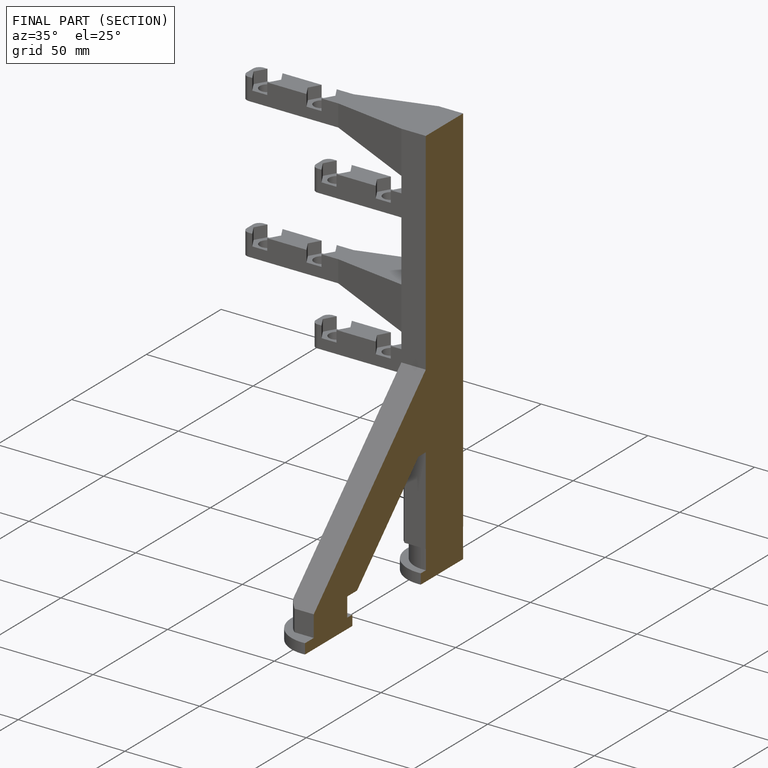
[diagram: finished part — half-section view (interior)]
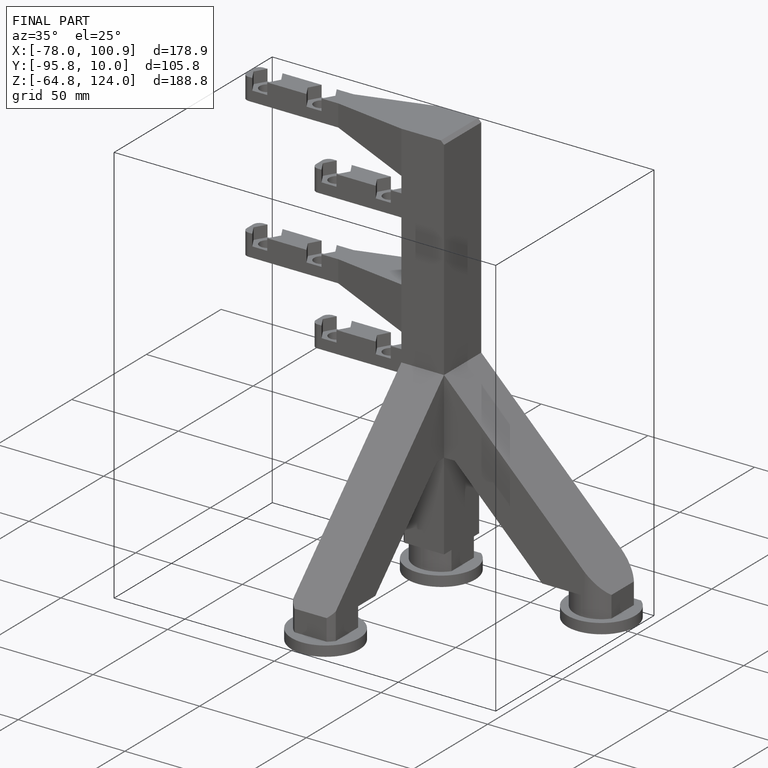
[diagram: finished part — iso view with bounding-box wireframe]
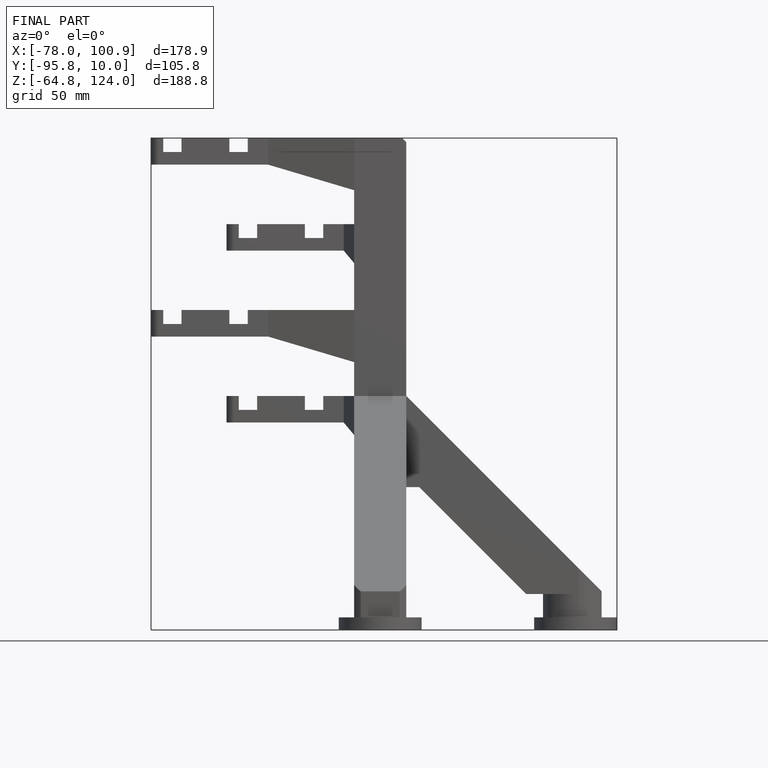
[diagram: finished part — front view with bounding-box wireframe]
